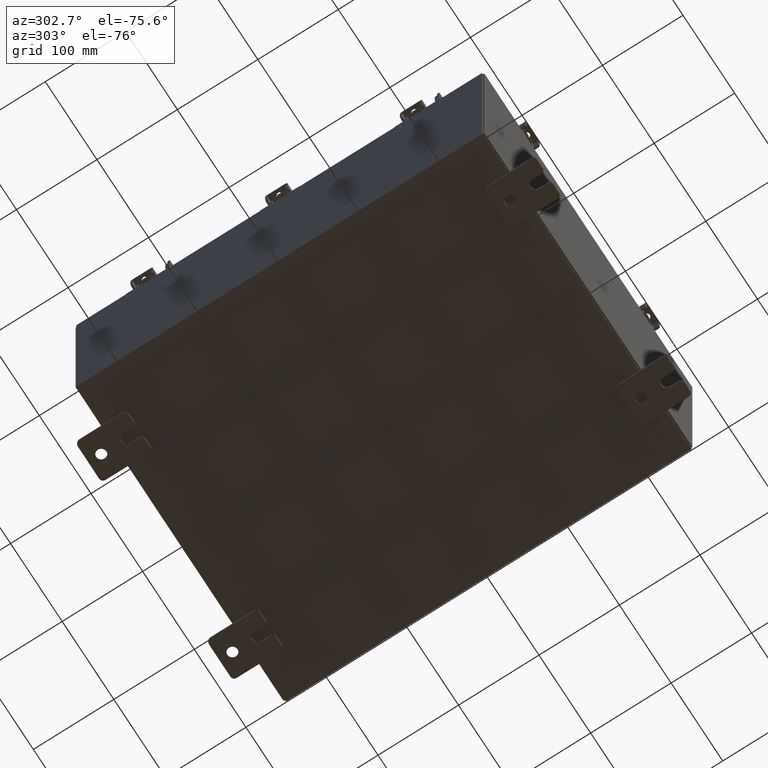
[diagram: clean part render]
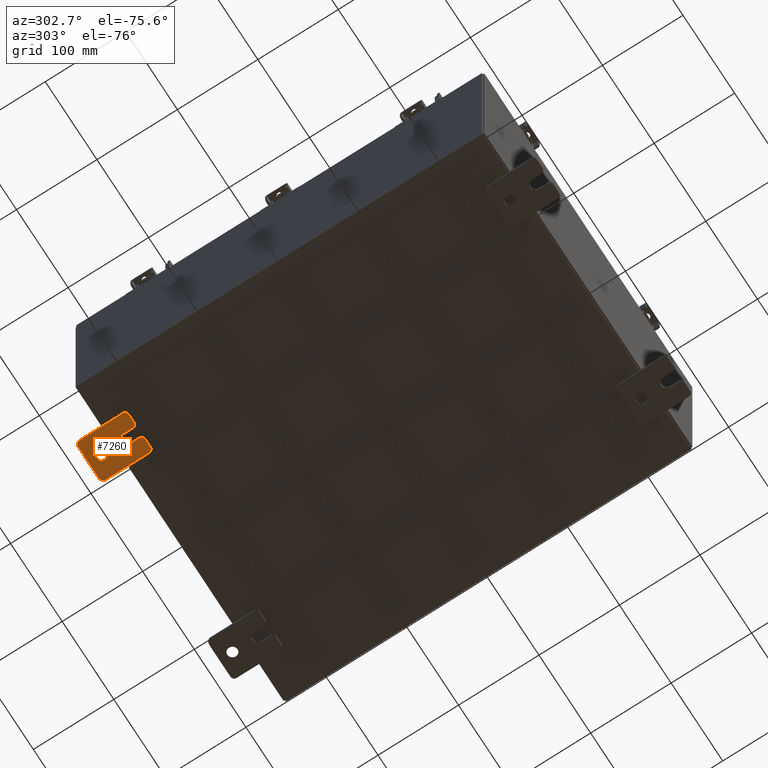
[diagram: same view with one face highlighted and labeled with its STEP entity id]
A machine part, auxiliary view. The second image highlights one B-rep face of the part: STEP entity #7260.
In plain terms, the highlighted planar face has unit normal (0, 0, 1).
Its self-contained STEP definition (entity closure, byte-faithful):
#41 = DIRECTION ( 'NONE',  ( -6.829619984160660000E-016, -1.000000000000000000, 0.0000000000000000000 ) ) ;
#308 = AXIS2_PLACEMENT_3D ( 'NONE', #15618, #5182, #17380 ) ;
#317 = EDGE_CURVE ( 'NONE', #6055, #1964, #22490, .T. ) ;
#421 = ORIENTED_EDGE ( 'NONE', *, *, #572, .F. ) ;
#572 = EDGE_CURVE ( 'NONE', #9618, #11253, #9405, .T. ) ;
#627 = CIRCLE ( 'NONE', #1985, 0.1900000000000011100 ) ;
#634 = ORIENTED_EDGE ( 'NONE', *, *, #16189, .T. ) ;
#768 = CARTESIAN_POINT ( 'NONE',  ( -0.1879999999999997800, -1.250000000000002200, 0.9999999999999992200 ) ) ;
#949 = CARTESIAN_POINT ( 'NONE',  ( -0.1879999999999997800, 1.059999999999996300, 0.8099999999999938400 ) ) ;
#1089 = CARTESIAN_POINT ( 'NONE',  ( -0.1879999999999997800, -1.250000000000002400, 0.8099999999999980500 ) ) ;
#1141 = VERTEX_POINT ( 'NONE', #18987 ) ;
#1140 = CARTESIAN_POINT ( 'NONE',  ( -0.1879999999999997800, -1.060000000000001600, 0.8099999999999978300 ) ) ;
#1174 = PLANE ( 'NONE',  #14681 ) ;
#1282 = ORIENTED_EDGE ( 'NONE', *, *, #19974, .T. ) ;
#1347 = DIRECTION ( 'NONE',  ( 0.0000000000000000000, -1.639108796198553600E-015, -1.000000000000000000 ) ) ;
#1607 = CARTESIAN_POINT ( 'NONE',  ( -0.1880000000000010000, 0.6249999999999992200, -7.703811342100550500E-020 ) ) ;
#1964 = VERTEX_POINT ( 'NONE', #20621 ) ;
#1985 = AXIS2_PLACEMENT_3D ( 'NONE', #1140, #13322, #2885 ) ;
#2331 = VECTOR ( 'NONE', #12950, 39.37007874015748100 ) ;
#2532 = CARTESIAN_POINT ( 'NONE',  ( -0.1880000000000001900, -0.6249999999999992200, 0.2500000000000005000 ) ) ;
#2677 = DIRECTION ( 'NONE',  ( 0.0000000000000000000, 0.0000000000000000000, -1.000000000000000000 ) ) ;
#2733 = CARTESIAN_POINT ( 'NONE',  ( -0.1879999999999997800, -1.250000000000005600, -1.000000000000006200 ) ) ;
#2885 = DIRECTION ( 'NONE',  ( 0.0000000000000000000, 7.189073667537492800E-016, -1.000000000000000000 ) ) ;
#2911 = DIRECTION ( 'NONE',  ( -0.0000000000000000000, 0.0000000000000000000, -1.000000000000000000 ) ) ;
#3100 = CARTESIAN_POINT ( 'NONE',  ( -0.1879999999999997800, 1.059999999999993600, -0.8100000000000089400 ) ) ;
#3193 = EDGE_CURVE ( 'NONE', #19076, #5870, #21298, .T. ) ;
#3373 = DIRECTION ( 'NONE',  ( 0.0000000000000000000, 0.0000000000000000000, -1.000000000000000000 ) ) ;
#3454 = ORIENTED_EDGE ( 'NONE', *, *, #6255, .F. ) ;
#3470 = VERTEX_POINT ( 'NONE', #1089 ) ;
#3574 = ORIENTED_EDGE ( 'NONE', *, *, #7742, .T. ) ;
#3714 = EDGE_CURVE ( 'NONE', #18530, #7101, #22236, .T. ) ;
#3825 = CARTESIAN_POINT ( 'NONE',  ( -0.1879999999999997800, 1.249999999999994200, -1.000000000000010400 ) ) ;
#3901 = DIRECTION ( 'NONE',  ( 0.0000000000000000000, -1.000000000000000000, 1.639108796198558100E-015 ) ) ;
#4441 = CIRCLE ( 'NONE', #6779, 0.1900000000000011400 ) ;
#4549 = CARTESIAN_POINT ( 'NONE',  ( -0.1879999999999997800, -1.060000000000002100, 0.4400000000000016700 ) ) ;
#4834 = DIRECTION ( 'NONE',  ( 0.0000000000000000000, 0.0000000000000000000, -1.000000000000000000 ) ) ;
#4954 = ORIENTED_EDGE ( 'NONE', *, *, #6267, .T. ) ;
#4986 = CIRCLE ( 'NONE', #10276, 0.1900000000000011100 ) ;
#5182 = DIRECTION ( 'NONE',  ( -1.000000000000000000, -0.0000000000000000000, 0.0000000000000000000 ) ) ;
#5201 = CARTESIAN_POINT ( 'NONE',  ( -0.1880000000000010000, 0.6249999999999992200, -0.2499999999999999200 ) ) ;
#5494 = EDGE_CURVE ( 'NONE', #9618, #5870, #4986, .T. ) ;
#5554 = DIRECTION ( 'NONE',  ( 0.0000000000000000000, 1.639108796198553600E-015, 1.000000000000000000 ) ) ;
#5608 = CARTESIAN_POINT ( 'NONE',  ( -0.1880000000000010000, 0.6249999999999992200, 0.2499999999999999200 ) ) ;
#5870 = VERTEX_POINT ( 'NONE', #21010 ) ;
#5871 = ORIENTED_EDGE ( 'NONE', *, *, #22011, .T. ) ;
#6024 = VERTEX_POINT ( 'NONE', #5608 ) ;
#6055 = VERTEX_POINT ( 'NONE', #17898 ) ;
#6240 = EDGE_LOOP ( 'NONE', ( #12427, #5871 ) ) ;
#6255 = EDGE_CURVE ( 'NONE', #17412, #7866, #19135, .T. ) ;
#6267 = EDGE_CURVE ( 'NONE', #3470, #11253, #627, .T. ) ;
#6271 = CARTESIAN_POINT ( 'NONE',  ( -0.1879999999999997800, 1.059999999999996500, 0.9999999999999953400 ) ) ;
#6281 = DIRECTION ( 'NONE',  ( 0.0000000000000000000, 0.0000000000000000000, -1.000000000000000000 ) ) ;
#6494 = CARTESIAN_POINT ( 'NONE',  ( -0.1879999999999997800, -1.060000000000004500, -1.000000000000006400 ) ) ;
#6650 = DIRECTION ( 'NONE',  ( 1.000000000000000000, -0.0000000000000000000, -5.163192708025532000E-017 ) ) ;
#6692 = AXIS2_PLACEMENT_3D ( 'NONE', #3100, #15270, #4834 ) ;
#6779 = AXIS2_PLACEMENT_3D ( 'NONE', #4549, #16757, #6281 ) ;
#6784 = AXIS2_PLACEMENT_3D ( 'NONE', #9357, #21559, #11126 ) ;
#6831 = VECTOR ( 'NONE', #10056, 39.37007874015748100 ) ;
#6931 = LINE ( 'NONE', #768, #2331 ) ;
#7101 = VERTEX_POINT ( 'NONE', #2532 ) ;
#7125 = ORIENTED_EDGE ( 'NONE', *, *, #317, .F. ) ;
#7260 = ADVANCED_FACE ( 'NONE', ( #10487, #15132 ), #1174, .F. ) ;
#7368 = VECTOR ( 'NONE', #5554, 39.37007874015748100 ) ;
#7391 = CARTESIAN_POINT ( 'NONE',  ( -0.1880000000000004700, -1.060000000000002100, 0.2500000000000005000 ) ) ;
#7742 = EDGE_CURVE ( 'NONE', #6055, #1141, #20826, .T. ) ;
#7866 = VERTEX_POINT ( 'NONE', #14841 ) ;
#8192 = CARTESIAN_POINT ( 'NONE',  ( -0.1879999999999997800, -1.060000000000001200, 0.9999999999999988900 ) ) ;
#8388 = CIRCLE ( 'NONE', #6692, 0.1900000000000011100 ) ;
#8572 = AXIS2_PLACEMENT_3D ( 'NONE', #17113, #6650, #18870 ) ;
#8999 = EDGE_CURVE ( 'NONE', #11455, #6024, #18075, .T. ) ;
#9357 = CARTESIAN_POINT ( 'NONE',  ( -0.1879999999999997800, -1.060000000000003400, -0.4400000000000005000 ) ) ;
#9371 = ORIENTED_EDGE ( 'NONE', *, *, #13507, .F. ) ;
#9405 = LINE ( 'NONE', #10989, #13502 ) ;
#9459 = ORIENTED_EDGE ( 'NONE', *, *, #3714, .F. ) ;
#9618 = VERTEX_POINT ( 'NONE', #6271 ) ;
#9869 = VECTOR ( 'NONE', #13261, 39.37007874015748100 ) ;
#10056 = DIRECTION ( 'NONE',  ( -6.556435184794182400E-016, -1.000000000000000000, -1.639108796198545600E-016 ) ) ;
#10276 = AXIS2_PLACEMENT_3D ( 'NONE', #949, #13137, #2677 ) ;
#10417 = DIRECTION ( 'NONE',  ( -1.000000000000000000, 6.523827964459549700E-016, 5.163192708025532000E-017 ) ) ;
#10487 = FACE_BOUND ( 'NONE', #6240, .T. ) ;
#10857 = DIRECTION ( 'NONE',  ( 6.556435184794182400E-016, 1.000000000000000000, 0.0000000000000000000 ) ) ;
#10989 = CARTESIAN_POINT ( 'NONE',  ( -0.1879999999999997800, 1.249999999999997600, 0.9999999999999951200 ) ) ;
#11057 = ORIENTED_EDGE ( 'NONE', *, *, #16910, .F. ) ;
#11126 = DIRECTION ( 'NONE',  ( 0.0000000000000000000, 0.0000000000000000000, -1.000000000000000000 ) ) ;
#11253 = VERTEX_POINT ( 'NONE', #8192 ) ;
#11431 = CIRCLE ( 'NONE', #13437, 0.2499999999999999200 ) ;
#11455 = VERTEX_POINT ( 'NONE', #5201 ) ;
#12427 = ORIENTED_EDGE ( 'NONE', *, *, #8999, .T. ) ;
#12950 = DIRECTION ( 'NONE',  ( 0.0000000000000000000, -1.639108796198553600E-015, -1.000000000000000000 ) ) ;
#13079 = ORIENTED_EDGE ( 'NONE', *, *, #20562, .F. ) ;
#13137 = DIRECTION ( 'NONE',  ( -1.000000000000000000, -0.0000000000000000000, 0.0000000000000000000 ) ) ;
#13255 = VECTOR ( 'NONE', #1347, 39.37007874015748100 ) ;
#13261 = DIRECTION ( 'NONE',  ( 0.0000000000000000000, 1.000000000000000000, -1.639108796198558100E-015 ) ) ;
#13322 = DIRECTION ( 'NONE',  ( -1.000000000000000000, -0.0000000000000000000, 0.0000000000000000000 ) ) ;
#13352 = DIRECTION ( 'NONE',  ( 1.000000000000000000, 0.0000000000000000000, -0.0000000000000000000 ) ) ;
#13437 = AXIS2_PLACEMENT_3D ( 'NONE', #20859, #10417, #41 ) ;
#13493 = CARTESIAN_POINT ( 'NONE',  ( -0.1880000000000001900, -0.6249999999999992200, -0.2499999999999998600 ) ) ;
#13502 = VECTOR ( 'NONE', #3901, 39.37007874015748100 ) ;
#13507 = EDGE_CURVE ( 'NONE', #3470, #13573, #6931, .T. ) ;
#13573 = VERTEX_POINT ( 'NONE', #20020 ) ;
#13790 = EDGE_LOOP ( 'NONE', ( #9371, #4954, #421, #20353, #18362, #16850, #3454, #634, #7125, #3574, #13079, #11057, #9459, #1282 ) ) ;
#13799 = DIRECTION ( 'NONE',  ( 1.000000000000000000, -0.0000000000000000000, -5.163192708025532000E-017 ) ) ;
#14334 = CARTESIAN_POINT ( 'NONE',  ( -0.1879999999999997800, 1.249999999999994700, -0.8100000000000092700 ) ) ;
#14681 = AXIS2_PLACEMENT_3D ( 'NONE', #16793, #13352, #2911 ) ;
#14841 = CARTESIAN_POINT ( 'NONE',  ( -0.1879999999999997800, 1.059999999999993400, -1.000000000000010000 ) ) ;
#14944 = CIRCLE ( 'NONE', #308, 0.1900000000000011100 ) ;
#15132 = FACE_OUTER_BOUND ( 'NONE', #13790, .T. ) ;
#15270 = DIRECTION ( 'NONE',  ( -1.000000000000000000, -0.0000000000000000000, 0.0000000000000000000 ) ) ;
#15618 = CARTESIAN_POINT ( 'NONE',  ( -0.1879999999999997800, -1.060000000000004100, -0.8100000000000050500 ) ) ;
#16032 = CARTESIAN_POINT ( 'NONE',  ( -0.1880000000000005800, -1.250000000000003800, 0.2500000000000005000 ) ) ;
#16189 = EDGE_CURVE ( 'NONE', #17412, #1964, #14944, .T. ) ;
#16757 = DIRECTION ( 'NONE',  ( -1.000000000000000000, -0.0000000000000000000, 0.0000000000000000000 ) ) ;
#16793 = CARTESIAN_POINT ( 'NONE',  ( -0.1879999999999997800, 0.0000000000000000000, 0.0000000000000000000 ) ) ;
#16850 = ORIENTED_EDGE ( 'NONE', *, *, #17432, .T. ) ;
#16910 = EDGE_CURVE ( 'NONE', #7101, #19427, #11431, .T. ) ;
#16924 = CARTESIAN_POINT ( 'NONE',  ( -0.1880000000000001900, -0.6249999999999992200, -0.2499999999999993900 ) ) ;
#17113 = CARTESIAN_POINT ( 'NONE',  ( -0.1880000000000010000, 0.6249999999999992200, -7.703811342100550500E-020 ) ) ;
#17380 = DIRECTION ( 'NONE',  ( 0.0000000000000000000, 0.0000000000000000000, -1.000000000000000000 ) ) ;
#17412 = VERTEX_POINT ( 'NONE', #6494 ) ;
#17432 = EDGE_CURVE ( 'NONE', #19076, #7866, #8388, .T. ) ;
#17606 = VECTOR ( 'NONE', #10857, 39.37007874015748100 ) ;
#17898 = CARTESIAN_POINT ( 'NONE',  ( -0.1879999999999997800, -1.250000000000004700, -0.4400000000000002200 ) ) ;
#18075 = CIRCLE ( 'NONE', #8572, 0.2499999999999999200 ) ;
#18239 = AXIS2_PLACEMENT_3D ( 'NONE', #1607, #13799, #3373 ) ;
#18362 = ORIENTED_EDGE ( 'NONE', *, *, #3193, .F. ) ;
#18530 = VERTEX_POINT ( 'NONE', #7391 ) ;
#18795 = CIRCLE ( 'NONE', #18239, 0.2499999999999999200 ) ;
#18870 = DIRECTION ( 'NONE',  ( 0.0000000000000000000, 0.0000000000000000000, -1.000000000000000000 ) ) ;
#18987 = CARTESIAN_POINT ( 'NONE',  ( -0.1880000000000004700, -1.060000000000003400, -0.2499999999999994400 ) ) ;
#19076 = VERTEX_POINT ( 'NONE', #14334 ) ;
#19135 = LINE ( 'NONE', #2733, #9869 ) ;
#19427 = VERTEX_POINT ( 'NONE', #13493 ) ;
#19974 = EDGE_CURVE ( 'NONE', #18530, #13573, #4441, .T. ) ;
#20020 = CARTESIAN_POINT ( 'NONE',  ( -0.1879999999999997800, -1.250000000000003100, 0.4400000000000020000 ) ) ;
#20353 = ORIENTED_EDGE ( 'NONE', *, *, #5494, .T. ) ;
#20562 = EDGE_CURVE ( 'NONE', #19427, #1141, #20746, .T. ) ;
#20621 = CARTESIAN_POINT ( 'NONE',  ( -0.1879999999999997800, -1.250000000000005300, -0.8100000000000047200 ) ) ;
#20746 = LINE ( 'NONE', #16924, #6831 ) ;
#20826 = CIRCLE ( 'NONE', #6784, 0.1900000000000011100 ) ;
#20859 = CARTESIAN_POINT ( 'NONE',  ( -0.1880000000000001900, -0.6249999999999992200, 6.829619984160658000E-017 ) ) ;
#21010 = CARTESIAN_POINT ( 'NONE',  ( -0.1879999999999997800, 1.249999999999997300, 0.8099999999999935000 ) ) ;
#21298 = LINE ( 'NONE', #3825, #7368 ) ;
#21559 = DIRECTION ( 'NONE',  ( -1.000000000000000000, -0.0000000000000000000, 0.0000000000000000000 ) ) ;
#22011 = EDGE_CURVE ( 'NONE', #6024, #11455, #18795, .T. ) ;
#22093 = CARTESIAN_POINT ( 'NONE',  ( -0.1879999999999997800, -1.250000000000002200, 0.9999999999999992200 ) ) ;
#22236 = LINE ( 'NONE', #16032, #17606 ) ;
#22490 = LINE ( 'NONE', #22093, #13255 ) ;